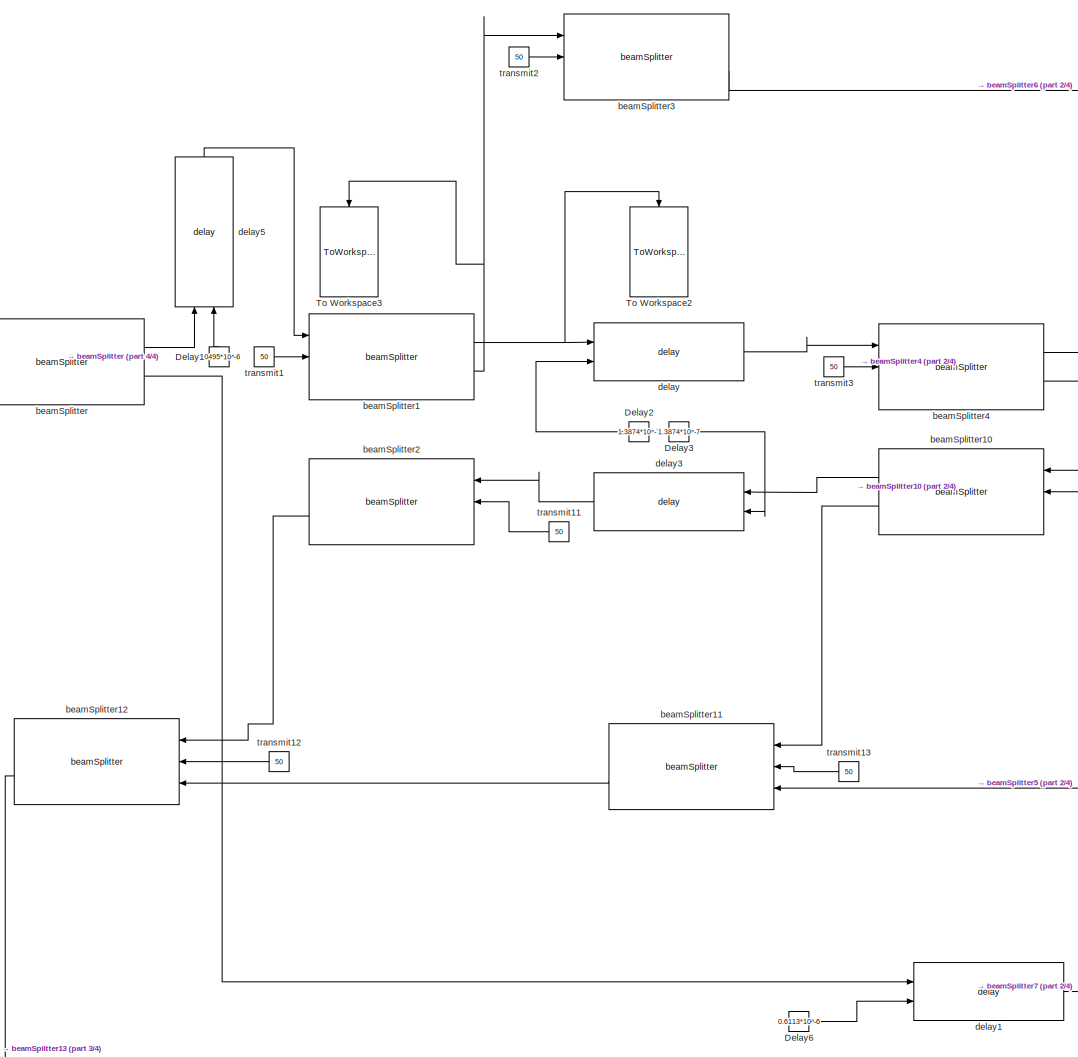
[diagram: root canvas - part 1/4, center side, full height]
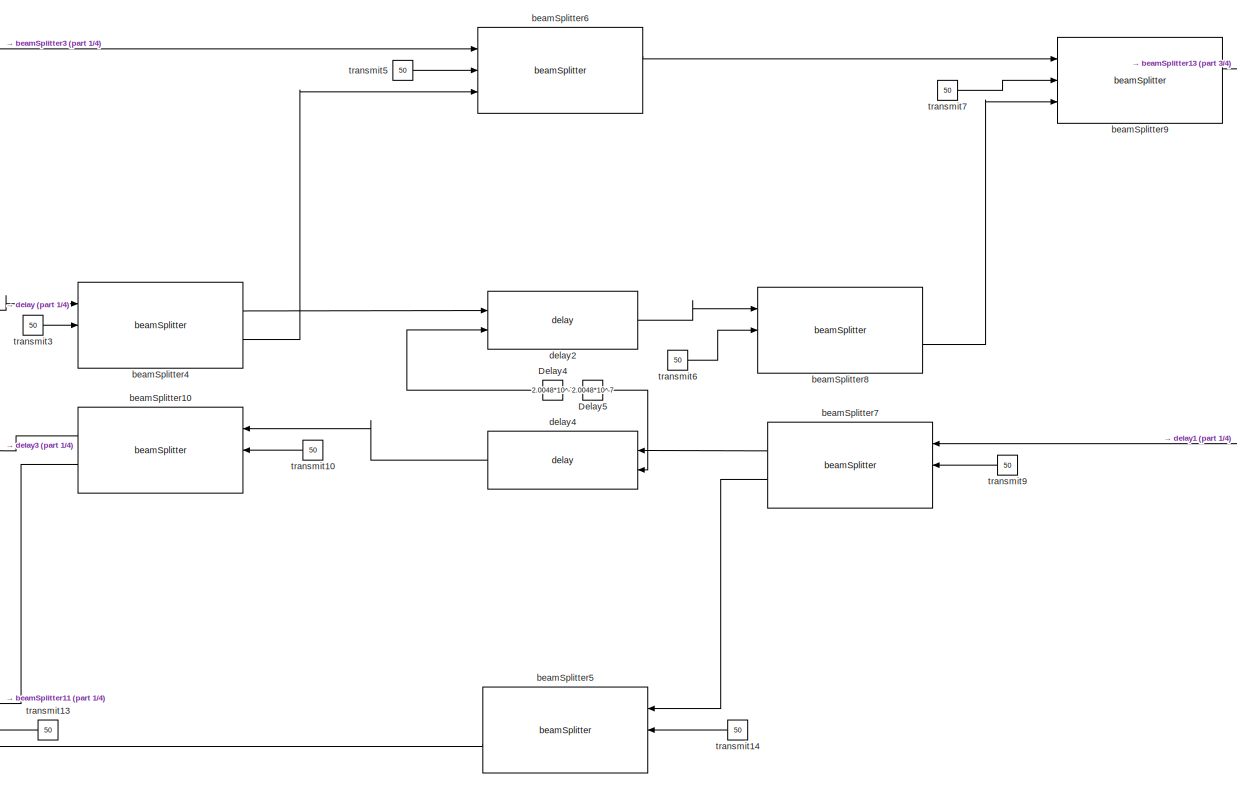
[diagram: root canvas - part 2/4, central region]
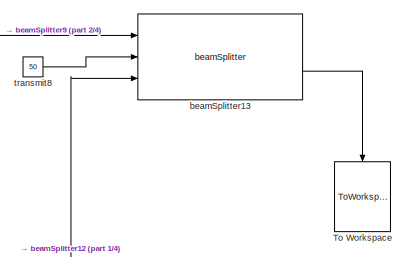
[diagram: root canvas - part 3/4, top right region]
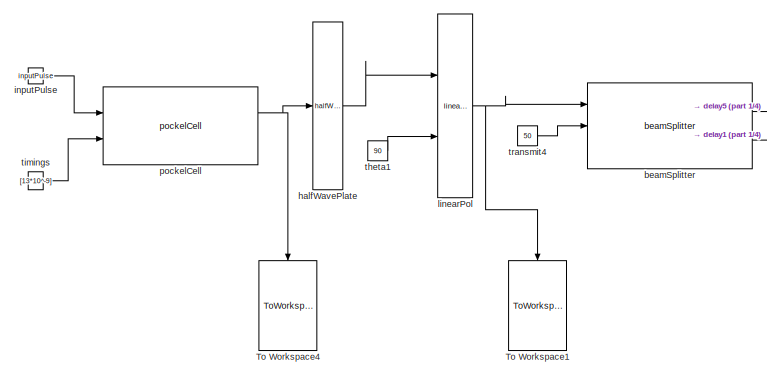
[diagram: root canvas - part 4/4, middle left region]
MODEL slx_d0b740532eaa
KIND model
BLOCK [Constant] Delay1
  Value = 0.0495*10^-6
BLOCK [Constant] Delay2
  Value = 1.3874*10^-7
BLOCK [Constant] Delay3
  Value = 1.3874*10^-7
BLOCK [Constant] Delay4
  Value = 2.0048*10^-7
BLOCK [Constant] Delay5
  Value = 2.0048*10^-7
BLOCK [Constant] Delay6
  Value = 0.6113*10^-6
BLOCK [ToWorkspace] To Workspace
  MaxDataPoints = inf
  Ports = [1]
  SampleTime = -1
  VariableName = outputPulse
BLOCK [ToWorkspace] To Workspace1
  MaxDataPoints = inf
  Ports = [1]
  SampleTime = -1
  VariableName = selectedPulse
BLOCK [ToWorkspace] To Workspace2
  MaxDataPoints = inf
  Ports = [1]
  SampleTime = -1
  VariableName = beamSplitter1
BLOCK [ToWorkspace] To Workspace3
  MaxDataPoints = inf
  Ports = [1]
  SampleTime = -1
  VariableName = beamSplitterOut
BLOCK [ToWorkspace] To Workspace4
  MaxDataPoints = inf
  Ports = [1]
  SampleTime = -1
  VariableName = pockelCellOutput
BLOCK [Reference] beamSplitter  REF=opticalComponentLibrary/beamSplitter
  Ports = [3, 2]
  SourceBlock = opticalComponentLibrary/beamSplitter
  SourceType = SubSystem
BLOCK [Reference] beamSplitter1  REF=opticalComponentLibrary/beamSplitter
  Ports = [3, 2]
  SourceBlock = opticalComponentLibrary/beamSplitter
  SourceType = SubSystem
BLOCK [Reference] beamSplitter10  REF=opticalComponentLibrary/beamSplitter
  Ports = [3, 2]
  SourceBlock = opticalComponentLibrary/beamSplitter
  SourceType = SubSystem
BLOCK [Reference] beamSplitter11  REF=opticalComponentLibrary/beamSplitter
  Ports = [3, 2]
  SourceBlock = opticalComponentLibrary/beamSplitter
  SourceType = SubSystem
BLOCK [Reference] beamSplitter12  REF=opticalComponentLibrary/beamSplitter
  Ports = [3, 2]
  SourceBlock = opticalComponentLibrary/beamSplitter
  SourceType = SubSystem
BLOCK [Reference] beamSplitter13  REF=opticalComponentLibrary/beamSplitter
  Ports = [3, 2]
  SourceBlock = opticalComponentLibrary/beamSplitter
  SourceType = SubSystem
BLOCK [Reference] beamSplitter2  REF=opticalComponentLibrary/beamSplitter
  Ports = [3, 2]
  SourceBlock = opticalComponentLibrary/beamSplitter
  SourceType = SubSystem
BLOCK [Reference] beamSplitter3  REF=opticalComponentLibrary/beamSplitter
  Ports = [3, 2]
  SourceBlock = opticalComponentLibrary/beamSplitter
  SourceType = SubSystem
BLOCK [Reference] beamSplitter4  REF=opticalComponentLibrary/beamSplitter
  Ports = [3, 2]
  SourceBlock = opticalComponentLibrary/beamSplitter
  SourceType = SubSystem
BLOCK [Reference] beamSplitter5  REF=opticalComponentLibrary/beamSplitter
  Ports = [3, 2]
  SourceBlock = opticalComponentLibrary/beamSplitter
  SourceType = SubSystem
BLOCK [Reference] beamSplitter6  REF=opticalComponentLibrary/beamSplitter
  Ports = [3, 2]
  SourceBlock = opticalComponentLibrary/beamSplitter
  SourceType = SubSystem
BLOCK [Reference] beamSplitter7  REF=opticalComponentLibrary/beamSplitter
  Ports = [3, 2]
  SourceBlock = opticalComponentLibrary/beamSplitter
  SourceType = SubSystem
BLOCK [Reference] beamSplitter8  REF=opticalComponentLibrary/beamSplitter
  Ports = [3, 2]
  SourceBlock = opticalComponentLibrary/beamSplitter
  SourceType = SubSystem
BLOCK [Reference] beamSplitter9  REF=opticalComponentLibrary/beamSplitter
  Ports = [3, 2]
  SourceBlock = opticalComponentLibrary/beamSplitter
  SourceType = SubSystem
BLOCK [Reference] delay  REF=opticalComponentLibrary/delay
  Ports = [2, 1]
  SourceBlock = opticalComponentLibrary/delay
  SourceType = SubSystem
BLOCK [Reference] delay1  REF=opticalComponentLibrary/delay
  Ports = [2, 1]
  SourceBlock = opticalComponentLibrary/delay
  SourceType = SubSystem
BLOCK [Reference] delay2  REF=opticalComponentLibrary/delay
  Ports = [2, 1]
  SourceBlock = opticalComponentLibrary/delay
  SourceType = SubSystem
BLOCK [Reference] delay3  REF=opticalComponentLibrary/delay
  Ports = [2, 1]
  SourceBlock = opticalComponentLibrary/delay
  SourceType = SubSystem
BLOCK [Reference] delay4  REF=opticalComponentLibrary/delay
  Ports = [2, 1]
  SourceBlock = opticalComponentLibrary/delay
  SourceType = SubSystem
BLOCK [Reference] delay5  REF=opticalComponentLibrary/delay
  Ports = [2, 1]
  SourceBlock = opticalComponentLibrary/delay
  SourceType = SubSystem
BLOCK [Reference] halfWavePlate  REF=opticalComponentLibrary/halfWavePlate
  Ports = [1, 1]
  SourceBlock = opticalComponentLibrary/halfWavePlate
  SourceType = SubSystem
BLOCK [Constant] inputPulse
  Value = inputPulse
BLOCK [Reference] linearPol  REF=opticalComponentLibrary/linearPol
  Ports = [2, 1]
  SourceBlock = opticalComponentLibrary/linearPol
  SourceType = SubSystem
BLOCK [Reference] pockelCell  REF=opticalComponentLibrary/pockelCell
  Ports = [2, 2]
  SourceBlock = opticalComponentLibrary/pockelCell
  SourceType = SubSystem
BLOCK [Constant] theta1
  Value = 90
BLOCK [Constant] timings
  SampleTime = inf
  Value = [13*10^-9]
BLOCK [Constant] transmit1
  Value = 50
BLOCK [Constant] transmit10
  Value = 50
BLOCK [Constant] transmit11
  Value = 50
BLOCK [Constant] transmit12
  Value = 50
BLOCK [Constant] transmit13
  Value = 50
BLOCK [Constant] transmit14
  Value = 50
BLOCK [Constant] transmit2
  Value = 50
BLOCK [Constant] transmit3
  Value = 50
BLOCK [Constant] transmit4
  Value = 50
BLOCK [Constant] transmit5
  Value = 50
BLOCK [Constant] transmit6
  Value = 50
BLOCK [Constant] transmit7
  Value = 50
BLOCK [Constant] transmit8
  Value = 50
BLOCK [Constant] transmit9
  Value = 50
LINE Delay1:1 -> delay5:2
LINE Delay2:1 -> delay:2
LINE Delay3:1 -> delay3:2
LINE Delay4:1 -> delay2:2
LINE Delay5:1 -> delay4:2
LINE Delay6:1 -> delay1:2
LINE beamSplitter10:1 -> delay3:1
LINE beamSplitter10:2 -> beamSplitter11:1
LINE beamSplitter11:2 -> beamSplitter12:3
LINE beamSplitter12:2 -> beamSplitter13:3
LINE beamSplitter13:2 -> To Workspace:1
NET beamSplitter1:1 -> To Workspace2:1, delay:1
NET beamSplitter1:2 -> To Workspace3:1, beamSplitter3:1
LINE beamSplitter2:2 -> beamSplitter12:1
LINE beamSplitter3:2 -> beamSplitter6:1
LINE beamSplitter4:1 -> delay2:1
LINE beamSplitter4:2 -> beamSplitter6:3
LINE beamSplitter5:2 -> beamSplitter11:3
LINE beamSplitter6:1 -> beamSplitter9:1
LINE beamSplitter7:1 -> delay4:1
LINE beamSplitter7:2 -> beamSplitter5:1
LINE beamSplitter8:2 -> beamSplitter9:3
LINE beamSplitter9:1 -> beamSplitter13:1
LINE beamSplitter:1 -> delay5:1
LINE beamSplitter:2 -> delay1:1
LINE delay1:1 -> beamSplitter7:1
LINE delay2:1 -> beamSplitter8:1
LINE delay3:1 -> beamSplitter2:1
LINE delay4:1 -> beamSplitter10:1
LINE delay5:1 -> beamSplitter1:1
LINE delay:1 -> beamSplitter4:1
LINE halfWavePlate:1 -> linearPol:1
LINE inputPulse:1 -> pockelCell:1
NET linearPol:1 -> To Workspace1:1, beamSplitter:1
NET pockelCell:1 -> To Workspace4:1, halfWavePlate:1
LINE theta1:1 -> linearPol:2
LINE timings:1 -> pockelCell:2
LINE transmit10:1 -> beamSplitter10:2
LINE transmit11:1 -> beamSplitter2:2
LINE transmit12:1 -> beamSplitter12:2
LINE transmit13:1 -> beamSplitter11:2
LINE transmit14:1 -> beamSplitter5:2
LINE transmit1:1 -> beamSplitter1:2
LINE transmit2:1 -> beamSplitter3:2
LINE transmit3:1 -> beamSplitter4:2
LINE transmit4:1 -> beamSplitter:2
LINE transmit5:1 -> beamSplitter6:2
LINE transmit6:1 -> beamSplitter8:2
LINE transmit7:1 -> beamSplitter9:2
LINE transmit8:1 -> beamSplitter13:2
LINE transmit9:1 -> beamSplitter7:2
note: NET lines group one-source signal fan-out (src -> all destinations, sorted); 1:1 wires keep LINE
